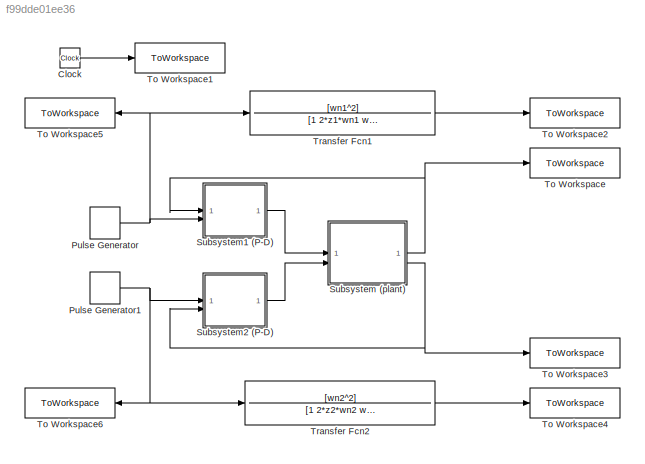
MODEL slx_f99dde01ee36
KIND model
CONFIG AbsTol = auto
CONFIG EnableMultiTasking = on
CONFIG FixedStep = 0.001
CONFIG MaxStep = auto
CONFIG MinStep = auto
CONFIG RelTol = 1e-3
CONFIG SampleTimeConstraint = Unconstrained
CONFIG SolverName = ode4
CONFIG StartTime = 0.0
CONFIG StopTime = 5
BLOCK [Clock] Clock
BLOCK [DiscretePulseGenerator] Pulse Generator
  Period = 8
  PhaseDelay = 2
  PulseType = Time based
  PulseWidth = 50
BLOCK [DiscretePulseGenerator] Pulse Generator1
  Period = 8
  PulseType = Time based
  PulseWidth = 50
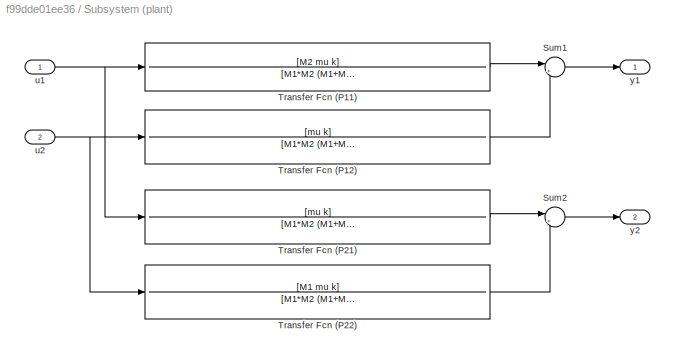
BLOCK [SubSystem] Subsystem (plant)
BLOCK [Sum] Subsystem (plant)/Sum1
  Inputs = |++
  SaturateOnIntegerOverflow = on
BLOCK [Sum] Subsystem (plant)/Sum2
  Inputs = |++
  SaturateOnIntegerOverflow = on
BLOCK [TransferFcn] Subsystem (plant)/Transfer Fcn (P11)
  Denominator = [M1*M2  (M1+M2)*mu  (M1+M2)*k  0  0]
  Numerator = [M2  mu  k]
BLOCK [TransferFcn] Subsystem (plant)/Transfer Fcn (P12)
  Denominator = [M1*M2  (M1+M2)*mu  (M1+M2)*k  0  0]
  Numerator = [mu  k]
BLOCK [TransferFcn] Subsystem (plant)/Transfer Fcn (P21)
  Denominator = [M1*M2  (M1+M2)*mu  (M1+M2)*k  0  0]
  Numerator = [mu  k]
BLOCK [TransferFcn] Subsystem (plant)/Transfer Fcn (P22)
  Denominator = [M1*M2  (M1+M2)*mu  (M1+M2)*k  0  0]
  Numerator = [M1  mu  k]
BLOCK [Inport] Subsystem (plant)/u1
BLOCK [Inport] Subsystem (plant)/u2
  Port = 2
BLOCK [Outport] Subsystem (plant)/y1
  VectorParamsAs1DForOutWhenUnconnected = off
BLOCK [Outport] Subsystem (plant)/y2
  Port = 2
  VectorParamsAs1DForOutWhenUnconnected = off
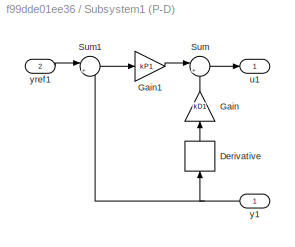
BLOCK [SubSystem] Subsystem1 (P-D)
BLOCK [Derivative] Subsystem1 (P-D)/Derivative
  NameLocation = left
BLOCK [Gain] Subsystem1 (P-D)/Gain
  Gain = kD1
  NameLocation = left
  OutDataTypeStr = Inherit: Same as input
  ParamDataTypeStr = Inherit: Same as input
  SaturateOnIntegerOverflow = on
BLOCK [Gain] Subsystem1 (P-D)/Gain1
  Gain = kP1
  OutDataTypeStr = Inherit: Same as input
  ParamDataTypeStr = Inherit: Same as input
  SaturateOnIntegerOverflow = on
BLOCK [Sum] Subsystem1 (P-D)/Sum
  Inputs = |+-
  NameLocation = top
  SaturateOnIntegerOverflow = on
BLOCK [Sum] Subsystem1 (P-D)/Sum1
  Inputs = |+-
  NameLocation = top
  SaturateOnIntegerOverflow = on
BLOCK [Outport] Subsystem1 (P-D)/u1
  VectorParamsAs1DForOutWhenUnconnected = off
BLOCK [Inport] Subsystem1 (P-D)/y1
  NameLocation = top
BLOCK [Inport] Subsystem1 (P-D)/yref1
  Port = 2
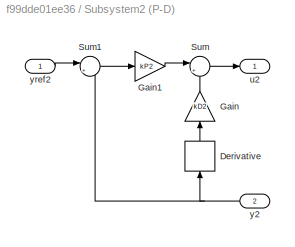
BLOCK [SubSystem] Subsystem2 (P-D)
BLOCK [Derivative] Subsystem2 (P-D)/Derivative
  NameLocation = left
BLOCK [Gain] Subsystem2 (P-D)/Gain
  Gain = kD2
  NameLocation = left
  OutDataTypeStr = Inherit: Same as input
  ParamDataTypeStr = Inherit: Same as input
  SaturateOnIntegerOverflow = on
BLOCK [Gain] Subsystem2 (P-D)/Gain1
  Gain = kP2
  OutDataTypeStr = Inherit: Same as input
  ParamDataTypeStr = Inherit: Same as input
  SaturateOnIntegerOverflow = on
BLOCK [Sum] Subsystem2 (P-D)/Sum
  Inputs = |+-
  NameLocation = top
  SaturateOnIntegerOverflow = on
BLOCK [Sum] Subsystem2 (P-D)/Sum1
  Inputs = |+-
  NameLocation = top
  SaturateOnIntegerOverflow = on
BLOCK [Outport] Subsystem2 (P-D)/u2
  VectorParamsAs1DForOutWhenUnconnected = off
BLOCK [Inport] Subsystem2 (P-D)/y2
  NameLocation = top
  Port = 2
BLOCK [Inport] Subsystem2 (P-D)/yref2
BLOCK [ToWorkspace] To Workspace
  FixptAsFi = on
  MaxDataPoints = inf
  SampleTime = -1
  VariableName = y1
BLOCK [ToWorkspace] To Workspace1
  FixptAsFi = on
  MaxDataPoints = inf
  SampleTime = -1
  VariableName = t
BLOCK [ToWorkspace] To Workspace2
  FixptAsFi = on
  MaxDataPoints = inf
  SampleTime = -1
  VariableName = yM1
BLOCK [ToWorkspace] To Workspace3
  FixptAsFi = on
  MaxDataPoints = inf
  SampleTime = -1
  VariableName = y2
BLOCK [ToWorkspace] To Workspace4
  FixptAsFi = on
  MaxDataPoints = inf
  SampleTime = -1
  VariableName = yM2
BLOCK [ToWorkspace] To Workspace5
  FixptAsFi = on
  MaxDataPoints = inf
  SampleTime = -1
  VariableName = yref1
BLOCK [ToWorkspace] To Workspace6
  FixptAsFi = on
  MaxDataPoints = inf
  SampleTime = -1
  VariableName = yref2
BLOCK [TransferFcn] Transfer Fcn1
  Denominator = [1 2*z1*wn1 wn1^2]
  Numerator = [wn1^2]
BLOCK [TransferFcn] Transfer Fcn2
  Denominator = [1 2*z2*wn2 wn2^2]
  Numerator = [wn2^2]
LINE Clock:1 -> To Workspace1:1
NET Pulse Generator1:1 -> Subsystem2 (P-D):1, To Workspace6:1, Transfer Fcn2:1
NET Pulse Generator:1 -> Subsystem1 (P-D):2, To Workspace5:1, Transfer Fcn1:1
LINE Subsystem (plant)/Sum1:1 -> Subsystem (plant)/y1:1
LINE Subsystem (plant)/Sum2:1 -> Subsystem (plant)/y2:1
LINE Subsystem (plant)/Transfer Fcn (P11):1 -> Subsystem (plant)/Sum1:1
LINE Subsystem (plant)/Transfer Fcn (P12):1 -> Subsystem (plant)/Sum1:2
LINE Subsystem (plant)/Transfer Fcn (P21):1 -> Subsystem (plant)/Sum2:1
LINE Subsystem (plant)/Transfer Fcn (P22):1 -> Subsystem (plant)/Sum2:2
NET Subsystem (plant)/u1:1 -> Subsystem (plant)/Transfer Fcn (P11):1, Subsystem (plant)/Transfer Fcn (P21):1
NET Subsystem (plant)/u2:1 -> Subsystem (plant)/Transfer Fcn (P12):1, Subsystem (plant)/Transfer Fcn (P22):1
NET Subsystem (plant):1 -> Subsystem1 (P-D):1, To Workspace:1
NET Subsystem (plant):2 -> Subsystem2 (P-D):2, To Workspace3:1
LINE Subsystem1 (P-D)/Derivative:1 -> Subsystem1 (P-D)/Gain:1
LINE Subsystem1 (P-D)/Gain1:1 -> Subsystem1 (P-D)/Sum:1
LINE Subsystem1 (P-D)/Gain:1 -> Subsystem1 (P-D)/Sum:2
LINE Subsystem1 (P-D)/Sum1:1 -> Subsystem1 (P-D)/Gain1:1
LINE Subsystem1 (P-D)/Sum:1 -> Subsystem1 (P-D)/u1:1
NET Subsystem1 (P-D)/y1:1 -> Subsystem1 (P-D)/Derivative:1, Subsystem1 (P-D)/Sum1:2
LINE Subsystem1 (P-D)/yref1:1 -> Subsystem1 (P-D)/Sum1:1
LINE Subsystem1 (P-D):1 -> Subsystem (plant):1
LINE Subsystem2 (P-D)/Derivative:1 -> Subsystem2 (P-D)/Gain:1
LINE Subsystem2 (P-D)/Gain1:1 -> Subsystem2 (P-D)/Sum:1
LINE Subsystem2 (P-D)/Gain:1 -> Subsystem2 (P-D)/Sum:2
LINE Subsystem2 (P-D)/Sum1:1 -> Subsystem2 (P-D)/Gain1:1
LINE Subsystem2 (P-D)/Sum:1 -> Subsystem2 (P-D)/u2:1
NET Subsystem2 (P-D)/y2:1 -> Subsystem2 (P-D)/Derivative:1, Subsystem2 (P-D)/Sum1:2
LINE Subsystem2 (P-D)/yref2:1 -> Subsystem2 (P-D)/Sum1:1
LINE Subsystem2 (P-D):1 -> Subsystem (plant):2
LINE Transfer Fcn1:1 -> To Workspace2:1
LINE Transfer Fcn2:1 -> To Workspace4:1
note: NET lines group one-source signal fan-out (src -> all destinations, sorted); 1:1 wires keep LINE
